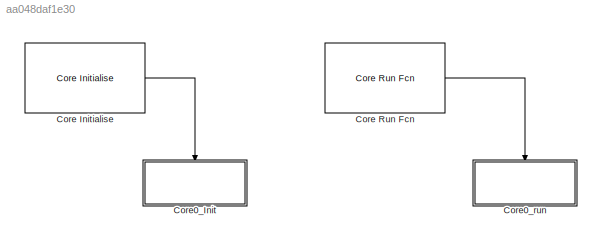
MODEL slx_aa048daf1e30
KIND model
CONFIG AbsTol = auto
CONFIG EnableMultiTasking = off
CONFIG FixedStep = auto
CONFIG MaxStep = auto
CONFIG MinStep = auto
CONFIG RelTol = 1e-3
CONFIG SampleTimeConstraint = Unconstrained
CONFIG Solver = FixedStepAuto
CONFIG SolverName = FixedStepAuto
CONFIG StartTime = 0.0
CONFIG StopTime = 10.0
WORKSPACE source: MAT-file member
WORKSPACE MCOS: class17 (value not decoded)
BLOCK [Reference] Core Initialise  REF=aurixappcontrollib/Core Initialise
  Ports = [0, 1]
  SourceBlock = aurixappcontrollib/Core Initialise
  SourceProductName = Hitex AURIX Support Package
  SourceType = Aurix Core Initialise
BLOCK [Reference] Core Run Fcn  REF=aurixappcontrollib/Core Run Fcn
  Ports = [0, 1]
  SourceBlock = aurixappcontrollib/Core Run Fcn
  SourceProductName = Hitex AURIX Support Package
  SourceType = Aurix Core Function Call
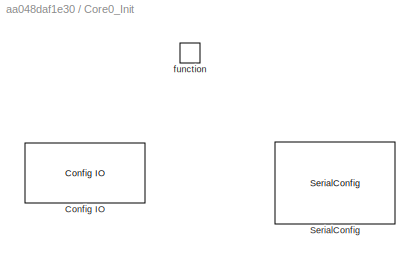
BLOCK [SubSystem] Core0_Init
  Ports = [0, 0, 0, 1]
  RequestExecContextInheritance = off
  TreatAsAtomicUnit = on
BLOCK [Reference] Core0_Init/Config IO  REF=sb275basic_lib/Config IO
  Ports = []
  SourceBlock = sb275basic_lib/Config IO
  SourceProductName = Hitex AURIX Support Package
  SourceType = SB275Basic_IoConfig
BLOCK [Reference] Core0_Init/SerialConfig  REF=sb275basic_lib/SerialConfig
  Ports = []
  SourceBlock = sb275basic_lib/SerialConfig
  SourceProductName = Hitex AURIX Support Package
  SourceType = SB275Basic_SerialConfig
BLOCK [TriggerPort] Core0_Init/function
  Ports = []
  StatesWhenEnabling = held
  TriggerType = function-call
  VariantControl = Variant
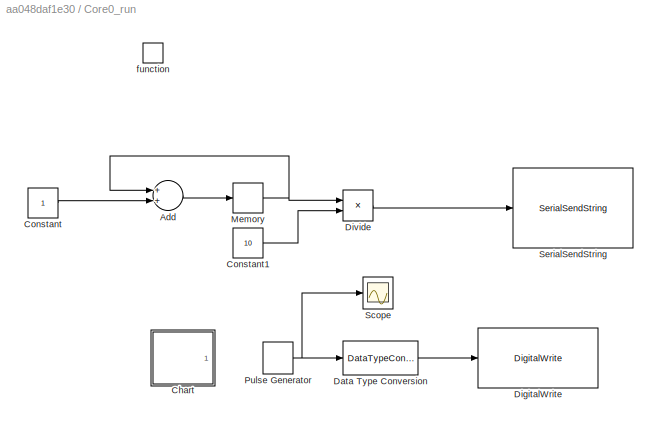
BLOCK [SubSystem] Core0_run
  Ports = [0, 0, 0, 1]
  RequestExecContextInheritance = off
  TreatAsAtomicUnit = on
BLOCK [Sum] Core0_run/Add
  InputSameDT = off
  OutDataTypeStr = Inherit: Inherit via internal rule
  Ports = [2, 1]
  SaturateOnIntegerOverflow = off
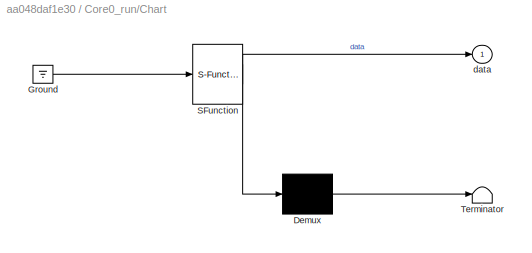
BLOCK [SubSystem] Core0_run/Chart
  BlockKeywords = __PRM__SERIALIZED__DATA__:Stateflow Chart,Stateflow Diagram
  Commented = on
  ErrorFcn = Stateflow.Translate.translate
  PermitHierarchicalResolution = ExplicitOnly
  Ports = [0, 1]
  RequestExecContextInheritance = off
  SFBlockType = Chart
  TreatAsAtomicUnit = on
BLOCK [Demux] Core0_run/Chart/ Demux 
  Outputs = 1
  Ports = [1, 1]
BLOCK [Ground] Core0_run/Chart/ Ground 
BLOCK [S-Function] Core0_run/Chart/ SFunction 
  EnableBusSupport = on
  FunctionName = sf_sfun
  PortCounts = [1 2]
  Ports = [1, 2]
  SFcnIsStateOwnerBlock = off
  SFunctionDeploymentMode = off
  Tag = Stateflow S-Function aurix_mbd_test 3
BLOCK [Terminator] Core0_run/Chart/ Terminator 
BLOCK [Outport] Core0_run/Chart/data
  IconDisplay = Port number
BLOCK [Constant] Core0_run/Constant
BLOCK [Constant] Core0_run/Constant1
  Value = 10
BLOCK [DataTypeConversion] Core0_run/Data Type Conversion
  RndMeth = Floor
  SaturateOnIntegerOverflow = off
BLOCK [Reference] Core0_run/DigitalWrite  REF=sb275basic_lib/DigitalWrite
  Ports = [1]
  SourceBlock = sb275basic_lib/DigitalWrite
  SourceProductName = Hitex AURIX Support Package
  SourceType = SB275Basic_DigitalWrite
BLOCK [Product] Core0_run/Divide
  InputSameDT = off
  Inputs = */
  OutDataTypeStr = Inherit: Inherit via back propagation
  Ports = [2, 1]
  RndMeth = Floor
  SaturateOnIntegerOverflow = off
BLOCK [Memory] Core0_run/Memory
  InheritSampleTime = on
BLOCK [DiscretePulseGenerator] Core0_run/Pulse Generator
  Period = 40
  Ports = [0, 1]
  PulseWidth = 20
  SampleTime = -1
BLOCK [Scope] Core0_run/Scope
  Floating = off
  NumInputPorts = 1
  Ports = [1]
  ScopeSpecificationString = Simulink.scopes.TimeScopeBlockCfg('CurrentConfiguration', extmgr.ConfigurationSet(extmgr.Configuration('Core','General UI',true),extmgr.Configuration('Core','Source UI',true),extmgr.Configuration('Sources','WiredSimulink',true),extmgr.Configuration('Visuals','Time Domain',true,'SerializedDisplays',{struct('MinYLimReal','-0.4551','MaxYLimReal','8.43379','YLabelReal','','MinYLimMag','0.00000','MaxYL...<+1377ch>
BLOCK [Reference] Core0_run/SerialSendString  REF=sb275basic_lib/SerialSendString
  Ports = [1]
  SourceBlock = sb275basic_lib/SerialSendString
  SourceProductName = Hitex AURIX Support Package
  SourceType = SB275Basic_SerialWrite
BLOCK [TriggerPort] Core0_run/function
  Ports = []
  SampleTime = -1
  StatesWhenEnabling = held
  TriggerType = function-call
  VariantControl = Variant
LINE Core Initialise:1 -> Core0_Init:trigger
LINE Core Run Fcn:1 -> Core0_run:trigger
LINE Core0_run/Add:1 -> Core0_run/Memory:1
LINE Core0_run/Constant1:1 -> Core0_run/Divide:2
LINE Core0_run/Constant:1 -> Core0_run/Add:2
LINE Core0_run/Data Type Conversion:1 -> Core0_run/DigitalWrite:1
LINE Core0_run/Divide:1 -> Core0_run/SerialSendString:1
NET Core0_run/Memory:1 -> Core0_run/Add:1, Core0_run/Divide:1
NET Core0_run/Pulse Generator:1 -> Core0_run/Data Type Conversion:1, Core0_run/Scope:1
note: NET lines group one-source signal fan-out (src -> all destinations, sorted); 1:1 wires keep LINE
CHART Core0_run/Chart states=2 transitions=3
  STATE_LABEL 'ON\nen:\nTimeCnt = 0;\ndu:\ndata = 1;\nTimeCnt = TimeCnt + 1;\n'
  STATE_LABEL 'OFF\nen:\nTimeCnt = 0;\ndu:\ndata = 0;\nTimeCnt = TimeCnt + 1;\n'
